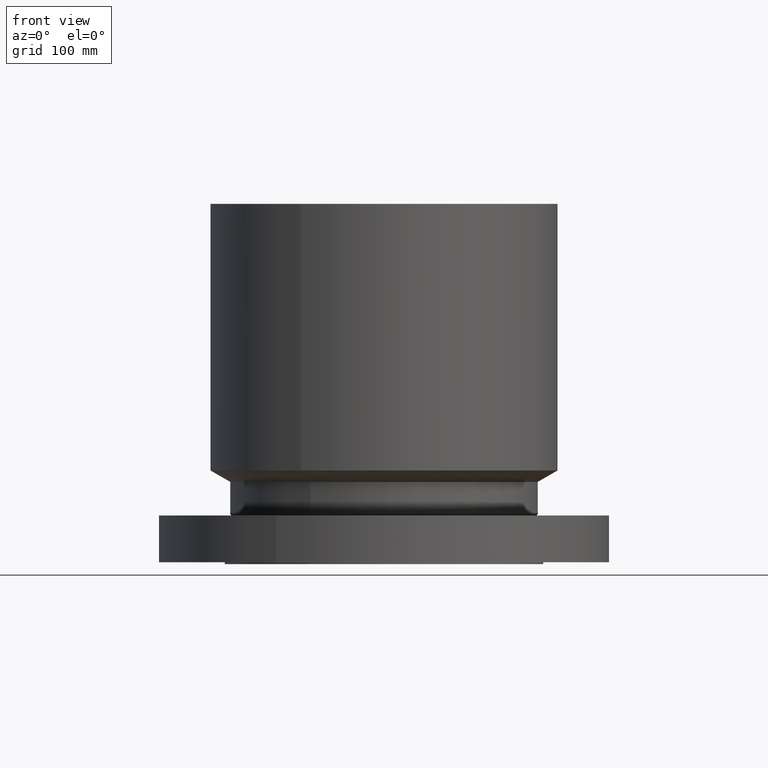
[diagram: clean part render]
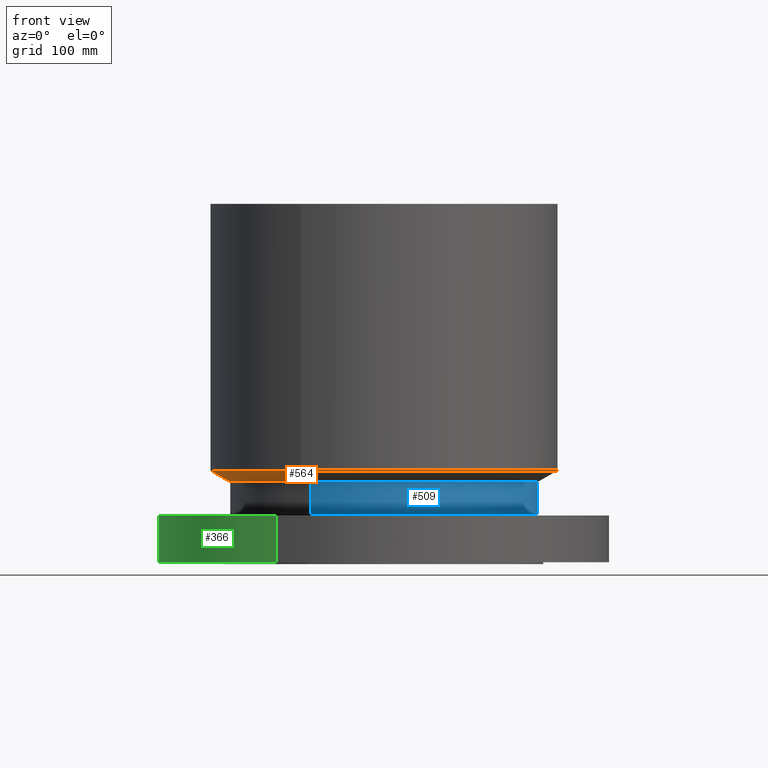
[diagram: same view with three faces highlighted in distinct colors, each labeled with its STEP entity id]
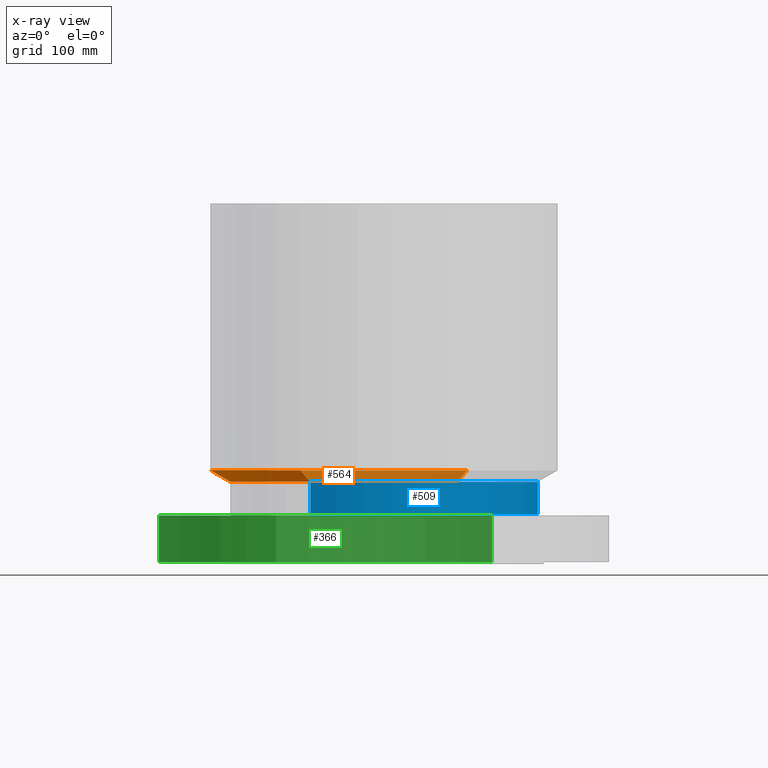
[diagram: x-ray of the same camera — body ghosted, the three highlighted faces saturated]
A machine part, front view with three faces highlighted in distinct colors.
The next image is the same camera in x-ray (body ghosted, the three faces saturated) — at least one of them is partly hidden behind the body in this view.
Their STEP definitions:

[orange] entity #564 — the highlighted conical surface has half-angle 60 deg.
#512=AXIS2_PLACEMENT_3D('Circle Axis2P3D',#510,#511,$) ;
#525=AXIS2_PLACEMENT_3D('Cone Axis2P3D',#522,#523,#524) ;
#555=AXIS2_PLACEMENT_3D('Circle Axis2P3D',#553,#554,$) ;
#488=CARTESIAN_POINT('Vertex',(2.45705588536,4.49761062971,2.67750000001)) ;
#495=CARTESIAN_POINT('Vertex',(-2.45705588536,-4.49761062971,2.67750000001)) ;
#510=CARTESIAN_POINT('Axis2P3D Location',(0.,0.,2.67750000001)) ;
#522=CARTESIAN_POINT('Axis2P3D Location',(0.,0.,2.67750000001)) ;
#527=CARTESIAN_POINT('Line Origine',(2.61406774925,4.78501891873,2.86658221317)) ;
#531=CARTESIAN_POINT('Vertex',(2.77107961314,5.07242720775,3.05566442633)) ;
#538=CARTESIAN_POINT('Vertex',(-2.77107961314,-5.07242720775,3.05566442633)) ;
#541=CARTESIAN_POINT('Line Origine',(-2.61406774925,-4.78501891873,2.86658221317)) ;
#553=CARTESIAN_POINT('Axis2P3D Location',(0.,0.,3.05566442633)) ;
#511=DIRECTION('Axis2P3D Direction',(0.,0.,-0.0393700787402)) ;
#523=DIRECTION('Axis2P3D Direction',(-0.,-0.,0.0393700787402)) ;
#524=DIRECTION('Axis2P3D XDirection',(0.0188750212049,0.0345504945626,0.)) ;
#528=DIRECTION('Vector Direction',(0.0163462478604,0.0299216060045,0.0196850393701)) ;
#542=DIRECTION('Vector Direction',(-0.0163462478604,-0.0299216060045,0.0196850393701)) ;
#554=DIRECTION('Axis2P3D Direction',(-0.,0.,0.0393700787402)) ;
#529=VECTOR('Line Direction',#528,0.0393700787402) ;
#543=VECTOR('Line Direction',#542,0.0393700787402) ;
#559=ORIENTED_EDGE('',*,*,#514,.F.) ;
#560=ORIENTED_EDGE('',*,*,#545,.T.) ;
#561=ORIENTED_EDGE('',*,*,#557,.T.) ;
#562=ORIENTED_EDGE('',*,*,#533,.F.) ;
#564=ADVANCED_FACE('PartBody',(#563),#526,.T.) ;
#513=CIRCLE('generated circle',#512,5.12500000002) ;
#556=CIRCLE('generated circle',#555,5.78000000002) ;
#526=CONICAL_SURFACE('Cone',#525,5.12500000002,1.0471975512) ;
#514=EDGE_CURVE('',#496,#489,#513,.T.) ;
#533=EDGE_CURVE('',#489,#532,#530,.T.) ;
#545=EDGE_CURVE('',#496,#539,#544,.T.) ;
#557=EDGE_CURVE('',#539,#532,#556,.F.) ;
#558=EDGE_LOOP('',(#559,#560,#561,#562)) ;
#563=FACE_OUTER_BOUND('',#558,.T.) ;
#530=LINE('Line',#527,#529) ;
#544=LINE('Line',#541,#543) ;
#489=VERTEX_POINT('',#488) ;
#496=VERTEX_POINT('',#495) ;
#532=VERTEX_POINT('',#531) ;
#539=VERTEX_POINT('',#538) ;

[blue] entity #509 — the highlighted cylindrical surface (partial cylindrical patch) has radius 130.175 mm, axis along (0, 0, -1).
#450=AXIS2_PLACEMENT_3D('Circle Axis2P3D',#448,#449,$) ;
#482=AXIS2_PLACEMENT_3D('Cylinder Axis2P3D',#479,#480,#481) ;
#493=AXIS2_PLACEMENT_3D('Circle Axis2P3D',#491,#492,$) ;
#445=CARTESIAN_POINT('Vertex',(2.45705588536,4.49761062971,1.59848076212)) ;
#448=CARTESIAN_POINT('Axis2P3D Location',(0.,0.,1.59848076212)) ;
#452=CARTESIAN_POINT('Vertex',(-2.45705588536,-4.49761062971,1.59848076212)) ;
#479=CARTESIAN_POINT('Axis2P3D Location',(0.,0.,5.93750000002)) ;
#484=CARTESIAN_POINT('Line Origine',(2.45705588536,4.49761062971,2.13799038107)) ;
#488=CARTESIAN_POINT('Vertex',(2.45705588536,4.49761062971,2.67750000001)) ;
#491=CARTESIAN_POINT('Axis2P3D Location',(0.,0.,2.67750000001)) ;
#495=CARTESIAN_POINT('Vertex',(-2.45705588536,-4.49761062971,2.67750000001)) ;
#498=CARTESIAN_POINT('Line Origine',(-2.45705588536,-4.49761062971,2.13799038107)) ;
#449=DIRECTION('Axis2P3D Direction',(-0.,0.,0.0393700787402)) ;
#480=DIRECTION('Axis2P3D Direction',(0.,0.,-0.0393700787402)) ;
#481=DIRECTION('Axis2P3D XDirection',(-0.0188750212049,-0.0345504945626,0.)) ;
#485=DIRECTION('Vector Direction',(0.,0.,-0.0393700787402)) ;
#492=DIRECTION('Axis2P3D Direction',(0.,0.,-0.0393700787402)) ;
#499=DIRECTION('Vector Direction',(0.,0.,-0.0393700787402)) ;
#486=VECTOR('Line Direction',#485,0.0393700787402) ;
#500=VECTOR('Line Direction',#499,0.0393700787402) ;
#504=ORIENTED_EDGE('',*,*,#454,.F.) ;
#505=ORIENTED_EDGE('',*,*,#490,.T.) ;
#506=ORIENTED_EDGE('',*,*,#497,.T.) ;
#507=ORIENTED_EDGE('',*,*,#502,.F.) ;
#509=ADVANCED_FACE('PartBody',(#508),#483,.T.) ;
#451=CIRCLE('generated circle',#450,5.12500000002) ;
#494=CIRCLE('generated circle',#493,5.12500000002) ;
#483=CYLINDRICAL_SURFACE('generated cylinder',#482,5.12500000002) ;
#454=EDGE_CURVE('',#446,#453,#451,.F.) ;
#490=EDGE_CURVE('',#446,#489,#487,.F.) ;
#497=EDGE_CURVE('',#489,#496,#494,.T.) ;
#502=EDGE_CURVE('',#453,#496,#501,.F.) ;
#503=EDGE_LOOP('',(#504,#505,#506,#507)) ;
#508=FACE_OUTER_BOUND('',#503,.T.) ;
#487=LINE('Line',#484,#486) ;
#501=LINE('Line',#498,#500) ;
#446=VERTEX_POINT('',#445) ;
#453=VERTEX_POINT('',#452) ;
#489=VERTEX_POINT('',#488) ;
#496=VERTEX_POINT('',#495) ;

[green] entity #366 — the highlighted cylindrical surface (partial cylindrical patch) has radius 190.5 mm, axis along (0, 0, -1).
#82=AXIS2_PLACEMENT_3D('Circle Axis2P3D',#80,#81,$) ;
#339=AXIS2_PLACEMENT_3D('Cylinder Axis2P3D',#336,#337,#338) ;
#350=AXIS2_PLACEMENT_3D('Circle Axis2P3D',#348,#349,$) ;
#80=CARTESIAN_POINT('Axis2P3D Location',(0.,0.,0.)) ;
#84=CARTESIAN_POINT('Vertex',(-3.59569153955,-6.5818692142,1.1189649382E-015)) ;
#86=CARTESIAN_POINT('Vertex',(3.59569153955,6.5818692142,1.1189649382E-015)) ;
#336=CARTESIAN_POINT('Axis2P3D Location',(0.,0.,5.93750000002)) ;
#341=CARTESIAN_POINT('Line Origine',(-3.59569153955,-6.5818692142,0.778750000003)) ;
#345=CARTESIAN_POINT('Vertex',(-3.59569153955,-6.5818692142,1.55750000001)) ;
#348=CARTESIAN_POINT('Axis2P3D Location',(0.,0.,1.55750000001)) ;
#352=CARTESIAN_POINT('Vertex',(3.59569153955,6.5818692142,1.55750000001)) ;
#355=CARTESIAN_POINT('Line Origine',(3.59569153955,6.5818692142,0.778750000003)) ;
#81=DIRECTION('Axis2P3D Direction',(0.,0.,-0.0393700787402)) ;
#337=DIRECTION('Axis2P3D Direction',(0.,0.,-0.0393700787402)) ;
#338=DIRECTION('Axis2P3D XDirection',(0.0188750212049,0.0345504945626,0.)) ;
#342=DIRECTION('Vector Direction',(0.,0.,-0.0393700787402)) ;
#349=DIRECTION('Axis2P3D Direction',(0.,0.,-0.0393700787402)) ;
#356=DIRECTION('Vector Direction',(0.,0.,-0.0393700787402)) ;
#343=VECTOR('Line Direction',#342,0.0393700787402) ;
#357=VECTOR('Line Direction',#356,0.0393700787402) ;
#361=ORIENTED_EDGE('',*,*,#88,.F.) ;
#362=ORIENTED_EDGE('',*,*,#347,.T.) ;
#363=ORIENTED_EDGE('',*,*,#354,.T.) ;
#364=ORIENTED_EDGE('',*,*,#359,.F.) ;
#366=ADVANCED_FACE('PartBody',(#365),#340,.T.) ;
#83=CIRCLE('generated circle',#82,7.50000000003) ;
#351=CIRCLE('generated circle',#350,7.50000000003) ;
#340=CYLINDRICAL_SURFACE('generated cylinder',#339,7.50000000003) ;
#88=EDGE_CURVE('',#85,#87,#83,.T.) ;
#347=EDGE_CURVE('',#85,#346,#344,.F.) ;
#354=EDGE_CURVE('',#346,#353,#351,.T.) ;
#359=EDGE_CURVE('',#87,#353,#358,.F.) ;
#360=EDGE_LOOP('',(#361,#362,#363,#364)) ;
#365=FACE_OUTER_BOUND('',#360,.T.) ;
#344=LINE('Line',#341,#343) ;
#358=LINE('Line',#355,#357) ;
#85=VERTEX_POINT('',#84) ;
#87=VERTEX_POINT('',#86) ;
#346=VERTEX_POINT('',#345) ;
#353=VERTEX_POINT('',#352) ;